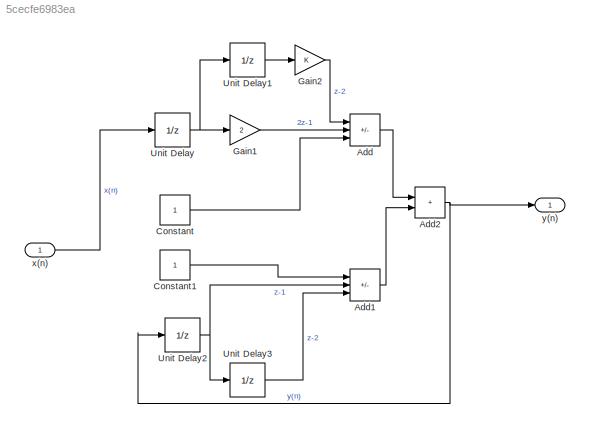
MODEL slx_5cecfe6983ea
KIND model
CONFIG AbsTol = auto
CONFIG EnableMultiTasking = off
CONFIG FixedStep = 2
CONFIG MaxStep = auto
CONFIG MinStep = auto
CONFIG RelTol = 1e-3
CONFIG SampleTimeConstraint = Unconstrained
CONFIG SolverName = FixedStepAuto
CONFIG StartTime = 0.0
CONFIG StopTime = 100.0
BLOCK [Sum] Add
  IconShape = rectangular
  Inputs = -++
  Ports = [3, 1]
BLOCK [Sum] Add1
  IconShape = rectangular
  Inputs = +--
  Ports = [3, 1]
BLOCK [Sum] Add2
  IconShape = rectangular
  Ports = [2, 1]
BLOCK [Constant] Constant
BLOCK [Constant] Constant1
BLOCK [Gain] Gain1
  Gain = 2
BLOCK [Gain] Gain2
BLOCK [UnitDelay] Unit Delay
  HasFrameUpgradeWarning = on
  SampleTime = -1
BLOCK [UnitDelay] Unit Delay1
  HasFrameUpgradeWarning = on
  SampleTime = -1
BLOCK [UnitDelay] Unit Delay2
  HasFrameUpgradeWarning = on
  SampleTime = -1
BLOCK [UnitDelay] Unit Delay3
  HasFrameUpgradeWarning = on
  SampleTime = -1
BLOCK [Inport] x(n)
  OutDataTypeStr = double
  PortDimensions = 1
  SampleTime = [0,1]
  SamplingMode = Sample based
  SignalType = real
BLOCK [Outport] y(n)
  OutDataTypeStr = double
  PortDimensions = 1
  SampleTime = [2,0]
  SamplingMode = Sample based
  SignalType = real
LINE Add1:1 -> Add2:2
NET Add2:1 -> Unit Delay2:1, y(n):1
LINE Add:1 -> Add2:1
LINE Constant1:1 -> Add1:1
LINE Constant:1 -> Add:3
LINE Gain1:1 -> Add:2
LINE Gain2:1 -> Add:1
LINE Unit Delay1:1 -> Gain2:1
NET Unit Delay2:1 -> Add1:2, Unit Delay3:1
LINE Unit Delay3:1 -> Add1:3
NET Unit Delay:1 -> Gain1:1, Unit Delay1:1
LINE x(n):1 -> Unit Delay:1
note: NET lines group one-source signal fan-out (src -> all destinations, sorted); 1:1 wires keep LINE
